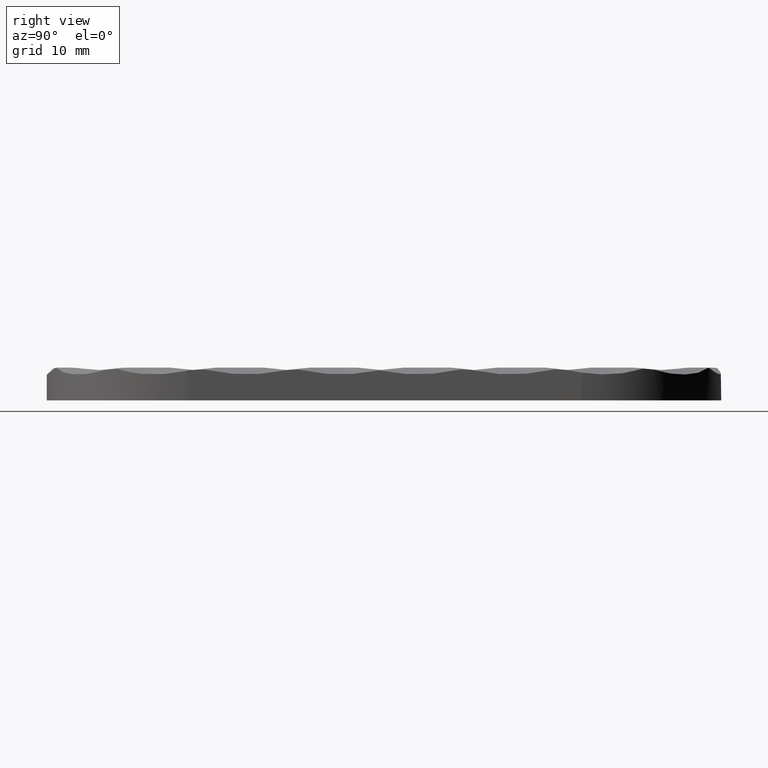
[diagram: clean part render]
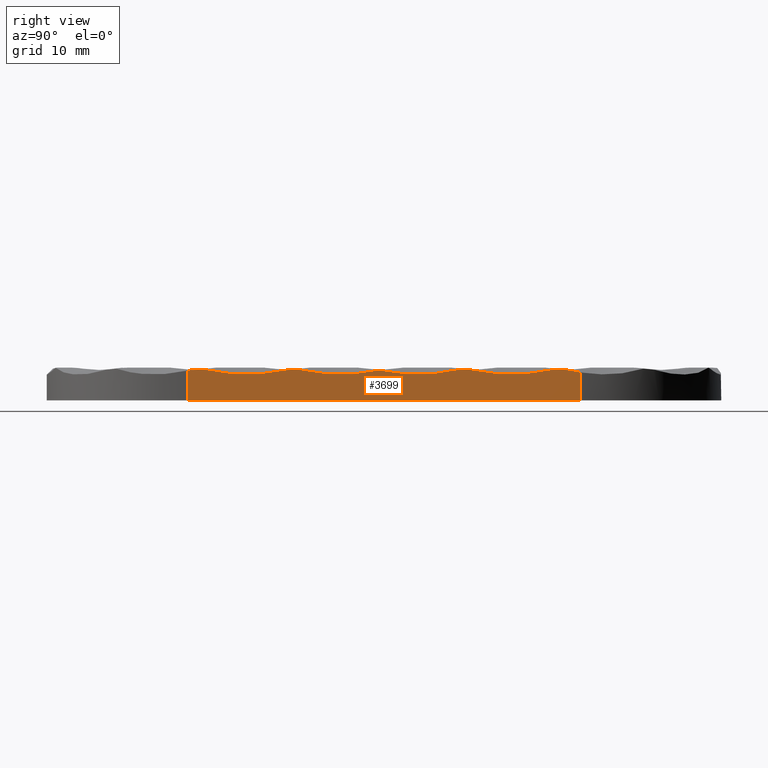
[diagram: same view with one face highlighted and labeled with its STEP entity id]
A machine part, right view. The second image highlights one B-rep face of the part: STEP entity #3699.
In plain terms, the highlighted planar face has unit normal (-1, 0, 0).
Its self-contained STEP definition (entity closure, byte-faithful):
#80 = CARTESIAN_POINT ( 'NONE',  ( 15.00000000000000500, 15.18943630648096900, 2.829218456750377500 ) ) ;
#276 = CARTESIAN_POINT ( 'NONE',  ( 15.00000000000000700, -10.27920079227844700, 3.249572045066469400 ) ) ;
#433 = EDGE_CURVE ( 'NONE', #12968, #23357, #10008, .T. ) ;
#697 = CARTESIAN_POINT ( 'NONE',  ( 15.00000000000000900, -1.920315612038687900, 2.955061737168982500 ) ) ;
#804 = ORIENTED_EDGE ( 'NONE', *, *, #9983, .F. ) ;
#882 = CARTESIAN_POINT ( 'NONE',  ( 15.00000000000000400, 20.99999999999999600, 2.976199151865951200 ) ) ;
#919 = CARTESIAN_POINT ( 'NONE',  ( 15.00000000000000000, -10.38319608347029700, 14.81250000000000000 ) ) ;
#1069 = EDGE_CURVE ( 'NONE', #8504, #19135, #19264, .T. ) ;
#1157 = AXIS2_PLACEMENT_3D ( 'NONE', #18621, #7505, #20481 ) ;
#1180 = CARTESIAN_POINT ( 'NONE',  ( 14.99999999999998900, 19.83337771825161200, 3.209250491666536300 ) ) ;
#1393 = CARTESIAN_POINT ( 'NONE',  ( 15.00000000000050800, 18.42320693741758900, 3.311772554955593000 ) ) ;
#1422 = CARTESIAN_POINT ( 'NONE',  ( 15.00000057087731900, -18.99802302199040900, 3.269607181301005900 ) ) ;
#1458 = CARTESIAN_POINT ( 'NONE',  ( 14.99999999999997200, 9.346242140637821500, 3.244199151012690000 ) ) ;
#1913 = VERTEX_POINT ( 'NONE', #3821 ) ;
#1943 = CARTESIAN_POINT ( 'NONE',  ( 15.00000000000000700, 5.198625288465993100, 2.830047329348441400 ) ) ;
#1946 = CARTESIAN_POINT ( 'NONE',  ( 14.99999908256614500, 9.456794280557284400, 3.223499420148876500 ) ) ;
#2017 = CARTESIAN_POINT ( 'NONE',  ( 15.00000000000000000, 17.33719510331230000, 3.122930828649027800 ) ) ;
#2147 = DIRECTION ( 'NONE',  ( 0.0000000000000000000, 0.0000000000000000000, 1.000000000000000000 ) ) ;
#2150 = DIRECTION ( 'NONE',  ( -1.000000000000000000, 0.0000000000000000000, 0.0000000000000000000 ) ) ;
#2201 = PLANE ( 'NONE',  #12692 ) ;
#2205 = CARTESIAN_POINT ( 'NONE',  ( 15.00000000000000700, -10.25568807783702100, 3.250518027150012900 ) ) ;
#2235 = CARTESIAN_POINT ( 'NONE',  ( 15.00000000000000000, -20.99999999999999600, 3.500000000000000000 ) ) ;
#2295 = ORIENTED_EDGE ( 'NONE', *, *, #14533, .F. ) ;
#2612 = CARTESIAN_POINT ( 'NONE',  ( 15.00000000000000000, -0.5154696900703651400, 3.217510125239520800 ) ) ;
#2643 = VERTEX_POINT ( 'NONE', #8697 ) ;
#2677 = B_SPLINE_CURVE_WITH_KNOTS ( 'NONE', 3,
 ( #4425, #17418, #9992, #23009, #11859, #697, #13751, #2612 ),
 .UNSPECIFIED., .F., .F.,
 ( 4, 2, 2, 4 ),
 ( 0.0000000000000000000, 0.004255574609912058200, 0.006383361914868087300, 0.008511149219824116300 ),
 .UNSPECIFIED. ) ;
#2828 = DIRECTION ( 'NONE',  ( 0.0000000000000000000, -3.900783600034335100E-014, -1.000000000000000000 ) ) ;
#3128 = AXIS2_PLACEMENT_3D ( 'NONE', #16894, #5773, #18755 ) ;
#3233 = CARTESIAN_POINT ( 'NONE',  ( 14.99999999999999600, 18.09216992268114100, 3.298496910697441100 ) ) ;
#3370 = CARTESIAN_POINT ( 'NONE',  ( 14.99999999999997200, 9.412405902153516000, 3.232663709572833400 ) ) ;
#3383 = VERTEX_POINT ( 'NONE', #5542 ) ;
#3506 = VERTEX_POINT ( 'NONE', #4183 ) ;
#3699 = ADVANCED_FACE ( 'NONE', ( #5660 ), #2201, .F. ) ;
#3721 = DIRECTION ( 'NONE',  ( -1.000000000000000000, -0.0000000000000000000, -0.0000000000000000000 ) ) ;
#3821 = CARTESIAN_POINT ( 'NONE',  ( 14.99999683804615300, 18.04332600254155100, 3.287152310666852100 ) ) ;
#3843 = VERTEX_POINT ( 'NONE', #882 ) ;
#3849 = CARTESIAN_POINT ( 'NONE',  ( 15.00000000000000200, 7.339498766659261300, 3.123466656329500200 ) ) ;
#4046 = CARTESIAN_POINT ( 'NONE',  ( 15.00000000000000700, -20.79607261387576500, 3.225963938649158500 ) ) ;
#4109 = CARTESIAN_POINT ( 'NONE',  ( 15.00000000000182600, -10.23215096584571700, 3.250986702676429600 ) ) ;
#4183 = CARTESIAN_POINT ( 'NONE',  ( 15.00000002478956100, -9.361773503209295900, 3.295204229616774500 ) ) ;
#4425 = CARTESIAN_POINT ( 'NONE',  ( 15.00000057087731900, -8.998023021990418300, 3.269607181301004100 ) ) ;
#4452 = ORIENTED_EDGE ( 'NONE', *, *, #13277, .F. ) ;
#4463 = B_SPLINE_CURVE_WITH_KNOTS ( 'NONE', 3,
 ( #18282, #19902, #22013, #10861 ),
 .UNSPECIFIED., .F., .F.,
 ( 4, 4 ),
 ( 0.0000000000000000000, 0.0003657040354800462600 ),
 .UNSPECIFIED. ) ;
#4767 = CARTESIAN_POINT ( 'NONE',  ( 15.00000000000000000, -20.99999999999998900, 3.177927190804575600 ) ) ;
#4881 = CARTESIAN_POINT ( 'NONE',  ( 15.00000000000296500, 19.46787254056847900, 3.250959305761959200 ) ) ;
#5069 = CARTESIAN_POINT ( 'NONE',  ( 14.99999999999998600, -9.117123650994022600, 3.296806640652981000 ) ) ;
#5087 = CARTESIAN_POINT ( 'NONE',  ( 15.00000000000000000, -20.99999999999998900, 3.177927190804575600 ) ) ;
#5105 = CARTESIAN_POINT ( 'NONE',  ( 15.00000000000000000, -20.96884633965607100, 3.185550088461777600 ) ) ;
#5181 = CARTESIAN_POINT ( 'NONE',  ( 14.99999248623590400, -20.90660991172136100, 3.201084218659981500 ) ) ;
#5183 = VERTEX_POINT ( 'NONE', #20407 ) ;
#5189 = ORIENTED_EDGE ( 'NONE', *, *, #20398, .F. ) ;
#5197 = EDGE_CURVE ( 'NONE', #19360, #17963, #14022, .T. ) ;
#5205 = CARTESIAN_POINT ( 'NONE',  ( 14.99999999999999800, -14.05456952690542100, 2.774562518516270800 ) ) ;
#5241 = CARTESIAN_POINT ( 'NONE',  ( 14.99999908256614500, 9.456794280557284400, 3.223499420148876500 ) ) ;
#5244 = CARTESIAN_POINT ( 'NONE',  ( 14.99999999999999600, -20.93771870986368800, 3.193280180150579900 ) ) ;
#5452 = AXIS2_PLACEMENT_3D ( 'NONE', #17203, #6079, #19067 ) ;
#5542 = CARTESIAN_POINT ( 'NONE',  ( 14.99999908256614500, 9.456794280557284400, 3.223499420148876500 ) ) ;
#5608 = CIRCLE ( 'NONE', #17479, 11.56249999999999600 ) ;
#5660 = FACE_OUTER_BOUND ( 'NONE', #6118, .T. ) ;
#5743 = ORIENTED_EDGE ( 'NONE', *, *, #12809, .T. ) ;
#5773 = DIRECTION ( 'NONE',  ( -1.000000000000000000, -0.0000000000000000000, -0.0000000000000000000 ) ) ;
#5914 = CARTESIAN_POINT ( 'NONE',  ( 15.00000000000000700, -20.70024995321293600, 3.239886489247336700 ) ) ;
#6079 = DIRECTION ( 'NONE',  ( -1.000000000000000000, -0.0000000000000000000, -0.0000000000000000000 ) ) ;
#6118 = EDGE_LOOP ( 'NONE', ( #2295, #19927, #8099, #7499, #22184, #11038, #14698, #8258, #12193, #13113, #5743, #804, #20530, #10019, #13311, #5189, #18250, #4452, #18043, #6874, #9661, #19154 ) ) ;
#6874 = ORIENTED_EDGE ( 'NONE', *, *, #433, .F. ) ;
#6943 = CARTESIAN_POINT ( 'NONE',  ( 15.00000000000000000, 9.202234040048850300, 3.257429760381667100 ) ) ;
#6969 = CARTESIAN_POINT ( 'NONE',  ( 14.99999999999999600, 18.14182610396462200, 3.306816956404640800 ) ) ;
#6982 = CARTESIAN_POINT ( 'NONE',  ( 15.00000000000000400, 20.99999999999999600, 2.976199151865951200 ) ) ;
#7072 = CARTESIAN_POINT ( 'NONE',  ( 15.00000000000000900, -11.91606896428739200, 2.955641040287671400 ) ) ;
#7461 = B_SPLINE_CURVE_WITH_KNOTS ( 'NONE', 3,
 ( #18143, #6943, #19999, #8888, #21864, #10712, #23794, #12621, #1458, #14469, #3370, #16340, #5241 ),
 .UNSPECIFIED., .F., .F.,
 ( 4, 3, 3, 3, 4 ),
 ( 3.469446951953614200E-018, 3.334628842148620700E-005, 6.669237477510015900E-005, 0.0002003271729334417400, 0.0002683176459380522500 ),
 .UNSPECIFIED. ) ;
#7499 = ORIENTED_EDGE ( 'NONE', *, *, #14852, .F. ) ;
#7505 = DIRECTION ( 'NONE',  ( -1.000000000000000000, -0.0000000000000000000, -0.0000000000000000000 ) ) ;
#7776 = CARTESIAN_POINT ( 'NONE',  ( 15.00000000000000700, -10.37277927799448700, 3.241649174992776500 ) ) ;
#7793 = CARTESIAN_POINT ( 'NONE',  ( 15.00000000000000700, -20.62005050896678100, 3.246967921223965700 ) ) ;
#8099 = ORIENTED_EDGE ( 'NONE', *, *, #16579, .F. ) ;
#8131 = CARTESIAN_POINT ( 'NONE',  ( 14.99999999999999800, 21.00000000000000000, 3.500000000000000000 ) ) ;
#8258 = ORIENTED_EDGE ( 'NONE', *, *, #18440, .F. ) ;
#8356 = B_SPLINE_CURVE_WITH_KNOTS ( 'NONE', 3,
 ( #1946, #20559, #22429, #11268, #80, #13184, #2017, #15011 ),
 .UNSPECIFIED., .F., .F.,
 ( 4, 2, 2, 4 ),
 ( 0.0000000000000000000, 0.004307778695618235700, 0.006461668043427350500, 0.008615557391236471400 ),
 .UNSPECIFIED. ) ;
#8504 = VERTEX_POINT ( 'NONE', #10924 ) ;
#8622 = CARTESIAN_POINT ( 'NONE',  ( 15.00000000000000400, 19.63406900682086900, 3.240934976054432600 ) ) ;
#8697 = CARTESIAN_POINT ( 'NONE',  ( 15.00000000000479600, 9.191126129698563600, 3.257838539190122300 ) ) ;
#8837 = CARTESIAN_POINT ( 'NONE',  ( 14.99999999999999600, 18.22995060319018300, 3.315748509728150100 ) ) ;
#8888 = CARTESIAN_POINT ( 'NONE',  ( 15.00000000000000700, 9.224432505045815100, 3.256207561240467300 ) ) ;
#8934 = CARTESIAN_POINT ( 'NONE',  ( 14.99999935081486100, -10.51044749855538500, 3.218587900765349300 ) ) ;
#8976 = B_SPLINE_CURVE_WITH_KNOTS ( 'NONE', 3,
 ( #4881, #15985, #19731, #8622, #21582, #10443, #23499, #12348, #1180, #14199 ),
 .UNSPECIFIED., .F., .F.,
 ( 4, 3, 3, 4 ),
 ( 3.469446951953614200E-018, 0.0001664985163624909600, 0.0002873410656847992700, 0.0004086661665227440200 ),
 .UNSPECIFIED. ) ;
#9025 = CIRCLE ( 'NONE', #5452, 11.56249999999999600 ) ;
#9070 = CARTESIAN_POINT ( 'NONE',  ( 15.00000000000000000, -0.5154696900703651400, 3.217510125239520800 ) ) ;
#9117 = B_SPLINE_CURVE_WITH_KNOTS ( 'NONE', 3,
 ( #18822, #22552, #4046, #17045, #5914, #18903, #7793, #20767, #9634, #22634 ),
 .UNSPECIFIED., .F., .F.,
 ( 4, 3, 3, 4 ),
 ( 1.063181719063449300E-017, 0.0001697828185827094800, 0.0002904102227315309200, 0.0004117539632722936400 ),
 .UNSPECIFIED. ) ;
#9352 = CARTESIAN_POINT ( 'NONE',  ( 15.00000000000000000, -0.5154696900703651400, 3.217510125239520800 ) ) ;
#9441 = AXIS2_PLACEMENT_3D ( 'NONE', #14803, #3721, #16693 ) ;
#9469 = CARTESIAN_POINT ( 'NONE',  ( 15.00000000000051300, 8.423206937444144100, 3.311772555211315100 ) ) ;
#9475 = B_SPLINE_CURVE_WITH_KNOTS ( 'NONE', 3,
 ( #16204, #3233, #6969, #19944, #8837, #21810, #10664, #23731, #12572, #1393 ),
 .UNSPECIFIED., .F., .F.,
 ( 4, 3, 3, 4 ),
 ( 7.059813062317230300E-018, 0.0001504322153045143600, 0.0002656345087734106600, 0.0003820472856485742900 ),
 .UNSPECIFIED. ) ;
#9616 = CARTESIAN_POINT ( 'NONE',  ( 14.99999999999999600, -10.32609664910935600, 3.246591076547026500 ) ) ;
#9634 = CARTESIAN_POINT ( 'NONE',  ( 15.00000000000000000, -20.53915906117095600, 3.250981784189944400 ) ) ;
#9661 = ORIENTED_EDGE ( 'NONE', *, *, #11578, .F. ) ;
#9875 = CARTESIAN_POINT ( 'NONE',  ( 15.00000000000000000, 20.99999999999999600, 0.0000000000000000000 ) ) ;
#9983 = EDGE_CURVE ( 'NONE', #3843, #16186, #15203, .T. ) ;
#9992 = CARTESIAN_POINT ( 'NONE',  ( 14.99999999999999800, -6.192360063079449100, 2.788616090688008000 ) ) ;
#10008 = B_SPLINE_CURVE_WITH_KNOTS ( 'NONE', 3,
 ( #18973, #18817, #18845, #18997, #19003, #19026, #19056, #19086, #19102, #19127 ),
 .UNSPECIFIED., .F., .F.,
 ( 4, 3, 3, 4 ),
 ( 0.0000000000000000000, 0.0001504323991252127400, 0.0002656357420089738600, 0.0003820489931711971000 ),
 .UNSPECIFIED. ) ;
#10019 = ORIENTED_EDGE ( 'NONE', *, *, #23078, .F. ) ;
#10426 = EDGE_CURVE ( 'NONE', #19360, #21058, #4463, .T. ) ;
#10443 = CARTESIAN_POINT ( 'NONE',  ( 14.99999999999998900, 19.71409875438116200, 3.231063745609273200 ) ) ;
#10603 = CARTESIAN_POINT ( 'NONE',  ( 14.99999999999999800, -17.60124929005503000, 2.950624289666342800 ) ) ;
#10664 = CARTESIAN_POINT ( 'NONE',  ( 14.99999999999998200, 18.30686071515834000, 3.317743473885250300 ) ) ;
#10712 = CARTESIAN_POINT ( 'NONE',  ( 15.00000000000001100, 9.246614650140628600, 3.254720660795822800 ) ) ;
#10717 = VECTOR ( 'NONE', #16743, 1000.000000000000000 ) ;
#10861 = CARTESIAN_POINT ( 'NONE',  ( 15.00000057087731900, -18.99802302199040900, 3.269607181301005900 ) ) ;
#10896 = VERTEX_POINT ( 'NONE', #18334 ) ;
#10924 = CARTESIAN_POINT ( 'NONE',  ( 14.99999248623590400, -20.90660991172136100, 3.201084218659981500 ) ) ;
#11038 = ORIENTED_EDGE ( 'NONE', *, *, #5197, .T. ) ;
#11251 = VERTEX_POINT ( 'NONE', #13601 ) ;
#11268 = CARTESIAN_POINT ( 'NONE',  ( 14.99999999999999800, 14.46374011511484900, 2.784190403168863300 ) ) ;
#11344 = VECTOR ( 'NONE', #23647, 1000.000000000000000 ) ;
#11447 = CARTESIAN_POINT ( 'NONE',  ( 14.99999999999999600, -10.29094760406898200, 3.248941387868598900 ) ) ;
#11578 = EDGE_CURVE ( 'NONE', #22006, #12968, #15007, .T. ) ;
#11691 = VERTEX_POINT ( 'NONE', #20862 ) ;
#11859 = CARTESIAN_POINT ( 'NONE',  ( 15.00000000000000700, -3.340383519629018100, 2.808805199074569700 ) ) ;
#12193 = ORIENTED_EDGE ( 'NONE', *, *, #1069, .T. ) ;
#12334 = EDGE_CURVE ( 'NONE', #3506, #5183, #5608, .T. ) ;
#12348 = CARTESIAN_POINT ( 'NONE',  ( 14.99999999999998900, 19.79369789172160000, 3.217375444748568300 ) ) ;
#12496 = VERTEX_POINT ( 'NONE', #21904 ) ;
#12572 = CARTESIAN_POINT ( 'NONE',  ( 14.99999999999998600, 18.38458131149318900, 3.315781507128341400 ) ) ;
#12621 = CARTESIAN_POINT ( 'NONE',  ( 15.00000000000001100, 9.302034771008527200, 3.250025617045075000 ) ) ;
#12692 = AXIS2_PLACEMENT_3D ( 'NONE', #2235, #2150, #2147 ) ;
#12809 = EDGE_CURVE ( 'NONE', #16529, #16186, #21855, .T. ) ;
#12940 = CARTESIAN_POINT ( 'NONE',  ( 14.99999999999999800, 0.8973663997447088900, 2.913153376042325200 ) ) ;
#12968 = VERTEX_POINT ( 'NONE', #22301 ) ;
#13100 = CARTESIAN_POINT ( 'NONE',  ( 15.00000000000000000, 4.475391485086013300, 2.784791856125777600 ) ) ;
#13113 = ORIENTED_EDGE ( 'NONE', *, *, #22904, .F. ) ;
#13126 = EDGE_CURVE ( 'NONE', #11251, #22006, #2677, .T. ) ;
#13184 = CARTESIAN_POINT ( 'NONE',  ( 15.00000000000000500, 16.62515909781970400, 2.998720811929355800 ) ) ;
#13277 = EDGE_CURVE ( 'NONE', #2643, #3383, #7461, .T. ) ;
#13311 = ORIENTED_EDGE ( 'NONE', *, *, #20558, .T. ) ;
#13370 = CARTESIAN_POINT ( 'NONE',  ( 15.00000000000000700, -10.26744864485549900, 3.250044866736335100 ) ) ;
#13412 = CARTESIAN_POINT ( 'NONE',  ( 15.00000057087731900, -18.99802302199040900, 3.269607181301005900 ) ) ;
#13601 = CARTESIAN_POINT ( 'NONE',  ( 15.00000057087731900, -8.998023021990418300, 3.269607181301004100 ) ) ;
#13751 = CARTESIAN_POINT ( 'NONE',  ( 15.00000000000000200, -1.215332500914107200, 3.066743895860219100 ) ) ;
#13953 = DIRECTION ( 'NONE',  ( -1.000000000000000000, -0.0000000000000000000, -0.0000000000000000000 ) ) ;
#13960 = CIRCLE ( 'NONE', #3128, 11.56249999999999600 ) ;
#14022 = CIRCLE ( 'NONE', #1157, 11.56249999999999600 ) ;
#14199 = CARTESIAN_POINT ( 'NONE',  ( 14.99998995973188600, 19.87276961177331100, 3.199994911327773500 ) ) ;
#14348 = CARTESIAN_POINT ( 'NONE',  ( 15.00000000000000500, 20.24584146254673900, 3.111936978737915200 ) ) ;
#14389 = B_SPLINE_CURVE_WITH_KNOTS ( 'NONE', 3,
 ( #17959, #19827, #5069, #18049 ),
 .UNSPECIFIED., .F., .F.,
 ( 4, 4 ),
 ( 0.0000000000000000000, 0.0003657040354800653400 ),
 .UNSPECIFIED. ) ;
#14469 = CARTESIAN_POINT ( 'NONE',  ( 14.99999999999997200, 9.390084053442555100, 3.236555452918978400 ) ) ;
#14533 = EDGE_CURVE ( 'NONE', #3506, #11251, #14389, .T. ) ;
#14698 = ORIENTED_EDGE ( 'NONE', *, *, #16069, .T. ) ;
#14702 = CARTESIAN_POINT ( 'NONE',  ( 15.00000000000000000, -20.99999999999999600, 3.500000000000000000 ) ) ;
#14794 = EDGE_CURVE ( 'NONE', #2643, #23357, #9025, .T. ) ;
#14803 = CARTESIAN_POINT ( 'NONE',  ( 15.00000000000000000, 19.61680391652970100, 14.81250000000000000 ) ) ;
#14852 = EDGE_CURVE ( 'NONE', #21058, #11691, #18117, .T. ) ;
#14925 = CARTESIAN_POINT ( 'NONE',  ( 15.00000000000000900, 6.629762058275372500, 2.999522703741962700 ) ) ;
#15007 = B_SPLINE_CURVE_WITH_KNOTS ( 'NONE', 3,
 ( #9352, #12940, #24280, #13100, #1943, #14925, #3849, #16822 ),
 .UNSPECIFIED., .F., .F.,
 ( 4, 2, 2, 4 ),
 ( 1.301042606982605500E-018, 0.004293509535726251600, 0.006440264303589377000, 0.008587019071452501500 ),
 .UNSPECIFIED. ) ;
#15011 = CARTESIAN_POINT ( 'NONE',  ( 14.99999683804615300, 18.04332600254155100, 3.287152310666852100 ) ) ;
#15125 = CARTESIAN_POINT ( 'NONE',  ( 14.99999935081486100, -10.51044749855538500, 3.218587900765349300 ) ) ;
#15200 = CARTESIAN_POINT ( 'NONE',  ( 14.99999999999999300, -10.24392004638107200, 3.250833207554831600 ) ) ;
#15203 = LINE ( 'NONE', #8131, #21333 ) ;
#15490 = CARTESIAN_POINT ( 'NONE',  ( 15.00000000000187900, -20.49868954717632300, 3.250576906560807000 ) ) ;
#15669 = LINE ( 'NONE', #14702, #10717 ) ;
#15985 = CARTESIAN_POINT ( 'NONE',  ( 14.99999999999999500, 19.52336745600662800, 3.250245536740775000 ) ) ;
#16069 = EDGE_CURVE ( 'NONE', #17963, #23027, #13960, .T. ) ;
#16186 = VERTEX_POINT ( 'NONE', #9875 ) ;
#16204 = CARTESIAN_POINT ( 'NONE',  ( 14.99999683804615300, 18.04332600254155100, 3.287152310666852100 ) ) ;
#16312 = CARTESIAN_POINT ( 'NONE',  ( 14.99999999999999800, -16.19066316945268700, 2.788418449531273200 ) ) ;
#16340 = CARTESIAN_POINT ( 'NONE',  ( 14.99999999999999300, 9.434649343262387700, 3.228296543851540500 ) ) ;
#16529 = VERTEX_POINT ( 'NONE', #16699 ) ;
#16579 = EDGE_CURVE ( 'NONE', #11691, #5183, #16663, .T. ) ;
#16663 = B_SPLINE_CURVE_WITH_KNOTS ( 'NONE', 3,
 ( #15125, #17023, #18879, #7776, #20741, #9616, #22613, #11447, #276, #13370, #2205, #15200, #4109 ),
 .UNSPECIFIED., .F., .F.,
 ( 4, 3, 3, 3, 4 ),
 ( 3.165573288030121900E-016, 0.0001395861671098746600, 0.0002099253223205902400, 0.0002451723190955074900, 0.0002804446640344352700 ),
 .UNSPECIFIED. ) ;
#16693 = DIRECTION ( 'NONE',  ( 0.0000000000000000000, 0.0000000000000000000, -1.000000000000000000 ) ) ;
#16699 = CARTESIAN_POINT ( 'NONE',  ( 15.00000000000000000, -20.99999999999999600, 0.0000000000000000000 ) ) ;
#16743 = DIRECTION ( 'NONE',  ( 0.0000000000000000000, 0.0000000000000000000, 1.000000000000000000 ) ) ;
#16822 = CARTESIAN_POINT ( 'NONE',  ( 14.99999785705541600, 8.043324347058886700, 3.287159419783966200 ) ) ;
#16894 = CARTESIAN_POINT ( 'NONE',  ( 15.00000000000000000, -20.38319608347029900, 14.81250000000000000 ) ) ;
#17023 = CARTESIAN_POINT ( 'NONE',  ( 14.99999999999912600, -10.46496373316333000, 3.228393466273664600 ) ) ;
#17045 = CARTESIAN_POINT ( 'NONE',  ( 15.00000000000000700, -20.74006641656959000, 3.234101357401811100 ) ) ;
#17070 = CARTESIAN_POINT ( 'NONE',  ( 15.00000000000000000, -20.38319608347029900, 3.250000000000002700 ) ) ;
#17203 = CARTESIAN_POINT ( 'NONE',  ( 15.00000000000000000, 9.616803916529702800, 14.81250000000000000 ) ) ;
#17418 = CARTESIAN_POINT ( 'NONE',  ( 14.99999999999999800, -7.602089537948288900, 2.950816175568577600 ) ) ;
#17479 = AXIS2_PLACEMENT_3D ( 'NONE', #919, #13953, #2828 ) ;
#17656 = EDGE_CURVE ( 'NONE', #12496, #3843, #19497, .T. ) ;
#17891 = VERTEX_POINT ( 'NONE', #22203 ) ;
#17928 = EDGE_CURVE ( 'NONE', #3383, #1913, #8356, .T. ) ;
#17959 = CARTESIAN_POINT ( 'NONE',  ( 15.00000002478956100, -9.361773503209295900, 3.295204229616774500 ) ) ;
#17963 = VERTEX_POINT ( 'NONE', #17070 ) ;
#18043 = ORIENTED_EDGE ( 'NONE', *, *, #14794, .T. ) ;
#18049 = CARTESIAN_POINT ( 'NONE',  ( 15.00000057087731900, -8.998023021990418300, 3.269607181301004100 ) ) ;
#18099 = CARTESIAN_POINT ( 'NONE',  ( 15.00000000000000200, 20.62163156062972300, 3.037576014552679100 ) ) ;
#18117 = B_SPLINE_CURVE_WITH_KNOTS ( 'NONE', 3,
 ( #1422, #10603, #16312, #5205, #18189, #7072, #20041, #8934 ),
 .UNSPECIFIED., .F., .F.,
 ( 4, 2, 2, 4 ),
 ( 3.496446946337351300E-018, 0.004258136146916247400, 0.006387204220374369400, 0.008516272293832491400 ),
 .UNSPECIFIED. ) ;
#18143 = CARTESIAN_POINT ( 'NONE',  ( 15.00000000000479600, 9.191126129698563600, 3.257838539190122300 ) ) ;
#18189 = CARTESIAN_POINT ( 'NONE',  ( 15.00000000000001200, -13.33694488116335300, 2.809018189442753500 ) ) ;
#18250 = ORIENTED_EDGE ( 'NONE', *, *, #17928, .F. ) ;
#18282 = CARTESIAN_POINT ( 'NONE',  ( 15.00000002478956800, -19.36177350320927800, 3.295204229616775400 ) ) ;
#18334 = CARTESIAN_POINT ( 'NONE',  ( 15.00000000000050800, 18.42320693741758900, 3.311772554955593000 ) ) ;
#18440 = EDGE_CURVE ( 'NONE', #8504, #23027, #9117, .T. ) ;
#18621 = CARTESIAN_POINT ( 'NONE',  ( 15.00000000000000000, -20.38319608347029900, 14.81250000000000000 ) ) ;
#18755 = DIRECTION ( 'NONE',  ( 0.0000000000000000000, 0.0000000000000000000, -1.000000000000000000 ) ) ;
#18817 = CARTESIAN_POINT ( 'NONE',  ( 14.99999999999999500, 8.092167184262910600, 3.298508938928959500 ) ) ;
#18822 = CARTESIAN_POINT ( 'NONE',  ( 14.99999248623590400, -20.90660991172136100, 3.201084218659981500 ) ) ;
#18845 = CARTESIAN_POINT ( 'NONE',  ( 15.00000000000000400, 8.141824348798449400, 3.306823378643959400 ) ) ;
#18879 = CARTESIAN_POINT ( 'NONE',  ( 15.00000000000000700, -10.41898457237275900, 3.236172608842550900 ) ) ;
#18903 = CARTESIAN_POINT ( 'NONE',  ( 15.00000000000000700, -20.66018963247556800, 3.244198576780245700 ) ) ;
#18973 = CARTESIAN_POINT ( 'NONE',  ( 14.99999785705541600, 8.043324347058886700, 3.287159419783966200 ) ) ;
#18997 = CARTESIAN_POINT ( 'NONE',  ( 15.00000000000000400, 8.191713137987839800, 3.311877366349136800 ) ) ;
#19003 = CARTESIAN_POINT ( 'NONE',  ( 15.00000000000000400, 8.229949639818846300, 3.315750918168750800 ) ) ;
#19026 = CARTESIAN_POINT ( 'NONE',  ( 15.00000000000000000, 8.268428190513237300, 3.317726237889974300 ) ) ;
#19056 = CARTESIAN_POINT ( 'NONE',  ( 15.00000000000000000, 8.306860392536599100, 3.317744226977205700 ) ) ;
#19067 = DIRECTION ( 'NONE',  ( 0.0000000000000000000, 0.0000000000000000000, -1.000000000000000000 ) ) ;
#19086 = CARTESIAN_POINT ( 'NONE',  ( 15.00000000000000000, 8.345693621694493900, 3.317762403774527200 ) ) ;
#19087 = CIRCLE ( 'NONE', #9441, 11.56249999999999600 ) ;
#19102 = CARTESIAN_POINT ( 'NONE',  ( 15.00000000000000000, 8.384581193638126700, 3.315781536710605600 ) ) ;
#19127 = CARTESIAN_POINT ( 'NONE',  ( 15.00000000000051300, 8.423206937444144100, 3.311772555211315100 ) ) ;
#19135 = VERTEX_POINT ( 'NONE', #4767 ) ;
#19154 = ORIENTED_EDGE ( 'NONE', *, *, #13126, .F. ) ;
#19264 = B_SPLINE_CURVE_WITH_KNOTS ( 'NONE', 3,
 ( #5181, #5244, #5105, #5087 ),
 .UNSPECIFIED., .F., .F.,
 ( 4, 4 ),
 ( 0.0000000000000000000, 9.621814846301123200E-005 ),
 .UNSPECIFIED. ) ;
#19360 = VERTEX_POINT ( 'NONE', #21283 ) ;
#19497 = B_SPLINE_CURVE_WITH_KNOTS ( 'NONE', 3,
 ( #23575, #14348, #18099, #6982 ),
 .UNSPECIFIED., .F., .F.,
 ( 4, 4 ),
 ( 3.576224061345498000E-018, 0.001149229812484863100 ),
 .UNSPECIFIED. ) ;
#19731 = CARTESIAN_POINT ( 'NONE',  ( 15.00000000000000400, 19.57888334206758100, 3.246828829750810600 ) ) ;
#19827 = CARTESIAN_POINT ( 'NONE',  ( 15.00000000000000400, -9.240073796414639800, 3.305997561523626300 ) ) ;
#19902 = CARTESIAN_POINT ( 'NONE',  ( 15.00000000000000500, -19.24007379641462700, 3.305997561523607700 ) ) ;
#19927 = ORIENTED_EDGE ( 'NONE', *, *, #12334, .T. ) ;
#19944 = CARTESIAN_POINT ( 'NONE',  ( 14.99999999999999600, 18.19171459973244600, 3.311873232061192300 ) ) ;
#19999 = CARTESIAN_POINT ( 'NONE',  ( 15.00000000000000700, 9.213337726966548400, 3.256884814339007700 ) ) ;
#20041 = CARTESIAN_POINT ( 'NONE',  ( 15.00000000000000200, -11.21069286071435100, 3.067551052277258000 ) ) ;
#20398 = EDGE_CURVE ( 'NONE', #1913, #10896, #9475, .T. ) ;
#20407 = CARTESIAN_POINT ( 'NONE',  ( 15.00000000000182600, -10.23215096584571700, 3.250986702676429600 ) ) ;
#20481 = DIRECTION ( 'NONE',  ( 0.0000000000000000000, 1.590319467706305800E-014, -1.000000000000000000 ) ) ;
#20530 = ORIENTED_EDGE ( 'NONE', *, *, #17656, .F. ) ;
#20558 = EDGE_CURVE ( 'NONE', #17891, #10896, #19087, .T. ) ;
#20559 = CARTESIAN_POINT ( 'NONE',  ( 14.99999999999999300, 10.87381056113756700, 2.916090584257056600 ) ) ;
#20741 = CARTESIAN_POINT ( 'NONE',  ( 15.00000000000000700, -10.34947651129366100, 3.244411177595239300 ) ) ;
#20767 = CARTESIAN_POINT ( 'NONE',  ( 15.00000000000000700, -20.57967495194618100, 3.249753578077499300 ) ) ;
#20862 = CARTESIAN_POINT ( 'NONE',  ( 14.99999935081486100, -10.51044749855538500, 3.218587900765349300 ) ) ;
#21058 = VERTEX_POINT ( 'NONE', #13412 ) ;
#21093 = DIRECTION ( 'NONE',  ( -0.0000000000000000000, -0.0000000000000000000, -1.000000000000000000 ) ) ;
#21283 = CARTESIAN_POINT ( 'NONE',  ( 15.00000002478956800, -19.36177350320927800, 3.295204229616775400 ) ) ;
#21333 = VECTOR ( 'NONE', #21093, 1000.000000000000000 ) ;
#21582 = CARTESIAN_POINT ( 'NONE',  ( 15.00000000000000400, 19.67414401119197000, 3.236654947650301000 ) ) ;
#21729 = CARTESIAN_POINT ( 'NONE',  ( 15.00000000000000000, -20.99999999999999600, 0.0000000000000000000 ) ) ;
#21810 = CARTESIAN_POINT ( 'NONE',  ( 14.99999999999998200, 18.26842883526701700, 3.317724888004904400 ) ) ;
#21855 = LINE ( 'NONE', #21729, #11344 ) ;
#21864 = CARTESIAN_POINT ( 'NONE',  ( 15.00000000000000700, 9.235527242777680000, 3.255530310604834100 ) ) ;
#21904 = CARTESIAN_POINT ( 'NONE',  ( 14.99998995973188600, 19.87276961177331100, 3.199994911327773500 ) ) ;
#22006 = VERTEX_POINT ( 'NONE', #9070 ) ;
#22013 = CARTESIAN_POINT ( 'NONE',  ( 14.99999999999997500, -19.11712365099398900, 3.296806640652997900 ) ) ;
#22184 = ORIENTED_EDGE ( 'NONE', *, *, #10426, .F. ) ;
#22203 = CARTESIAN_POINT ( 'NONE',  ( 15.00000000000296500, 19.46787254056847900, 3.250959305761959200 ) ) ;
#22301 = CARTESIAN_POINT ( 'NONE',  ( 14.99999785705541600, 8.043324347058886700, 3.287159419783966200 ) ) ;
#22429 = CARTESIAN_POINT ( 'NONE',  ( 14.99999999999999800, 12.30278396128691800, 2.769318293361806600 ) ) ;
#22552 = CARTESIAN_POINT ( 'NONE',  ( 15.00000000000000500, -20.85172336359642700, 3.214882044911995700 ) ) ;
#22613 = CARTESIAN_POINT ( 'NONE',  ( 14.99999999999999600, -10.30268305262790700, 3.248156673587454500 ) ) ;
#22634 = CARTESIAN_POINT ( 'NONE',  ( 15.00000000000187900, -20.49868954717632300, 3.250576906560807000 ) ) ;
#22904 = EDGE_CURVE ( 'NONE', #16529, #19135, #15669, .T. ) ;
#23009 = CARTESIAN_POINT ( 'NONE',  ( 15.00000000000000000, -4.057576042329343700, 2.774488955976273500 ) ) ;
#23027 = VERTEX_POINT ( 'NONE', #15490 ) ;
#23078 = EDGE_CURVE ( 'NONE', #17891, #12496, #8976, .T. ) ;
#23357 = VERTEX_POINT ( 'NONE', #9469 ) ;
#23499 = CARTESIAN_POINT ( 'NONE',  ( 14.99999999999998900, 19.75381864353518000, 3.224233297302167700 ) ) ;
#23575 = CARTESIAN_POINT ( 'NONE',  ( 14.99998995973188600, 19.87276961177331100, 3.199994911327773500 ) ) ;
#23647 = DIRECTION ( 'NONE',  ( 0.0000000000000000000, 1.000000000000000000, -0.0000000000000000000 ) ) ;
#23731 = CARTESIAN_POINT ( 'NONE',  ( 14.99999999999998200, 18.34569382374990800, 3.317762253802125600 ) ) ;
#23794 = CARTESIAN_POINT ( 'NONE',  ( 15.00000000000001100, 9.257690364919531200, 3.253782355995266300 ) ) ;
#24280 = CARTESIAN_POINT ( 'NONE',  ( 14.99999999999999800, 2.321794598138934500, 2.768421809205308100 ) ) ;